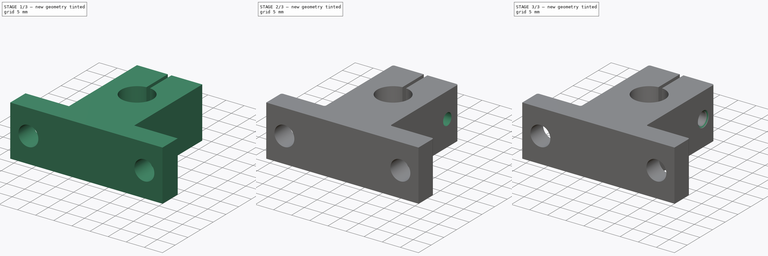
[diagram: build sequence overview — one tinted view per stage of 3, left to right]
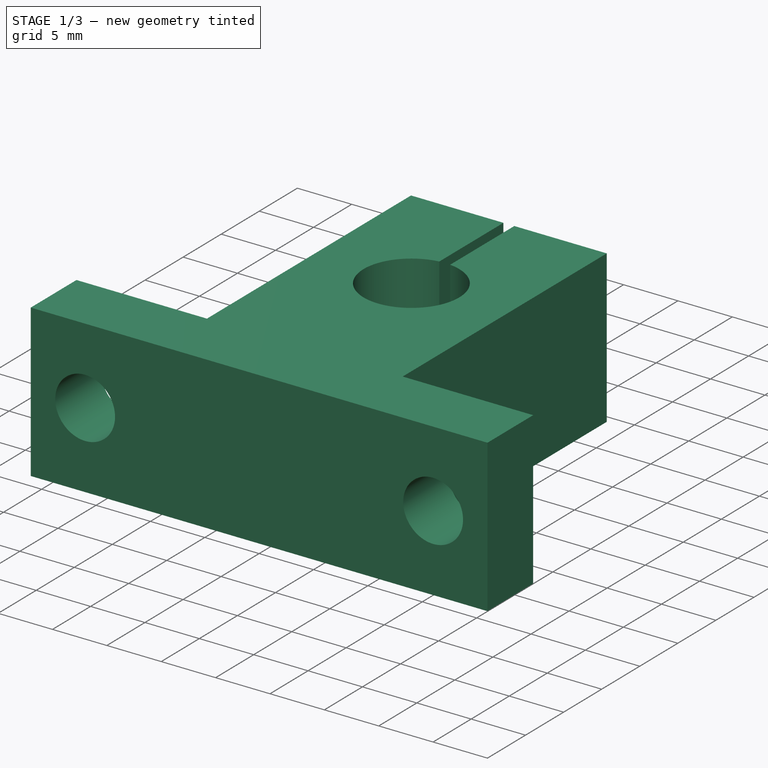
[diagram: stage 1 of 3 — iso view after this stage's code; geometry added in this stage tinted green]
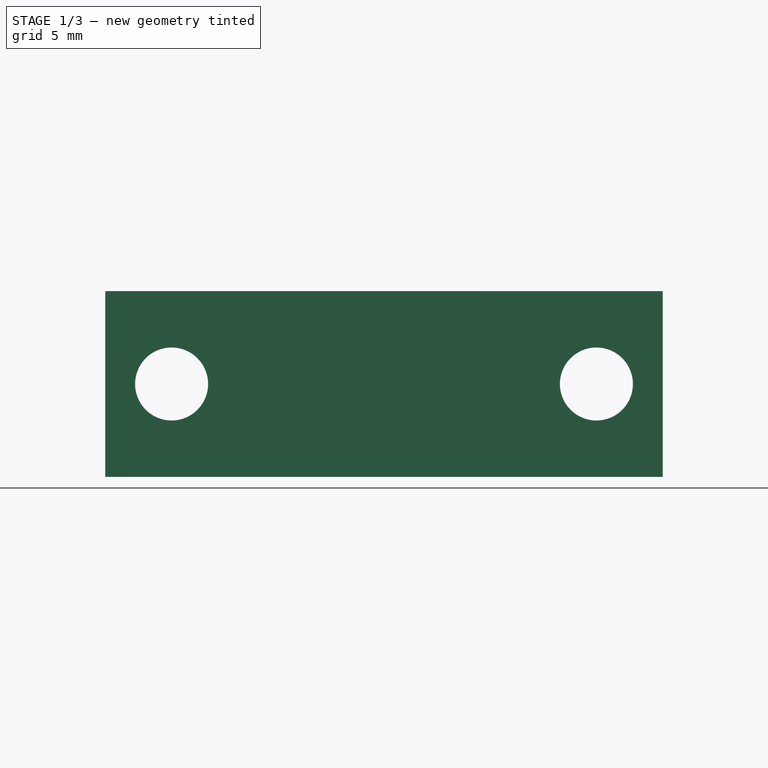
[diagram: stage 1 of 3 — front view after this stage's code; geometry added in this stage tinted green]
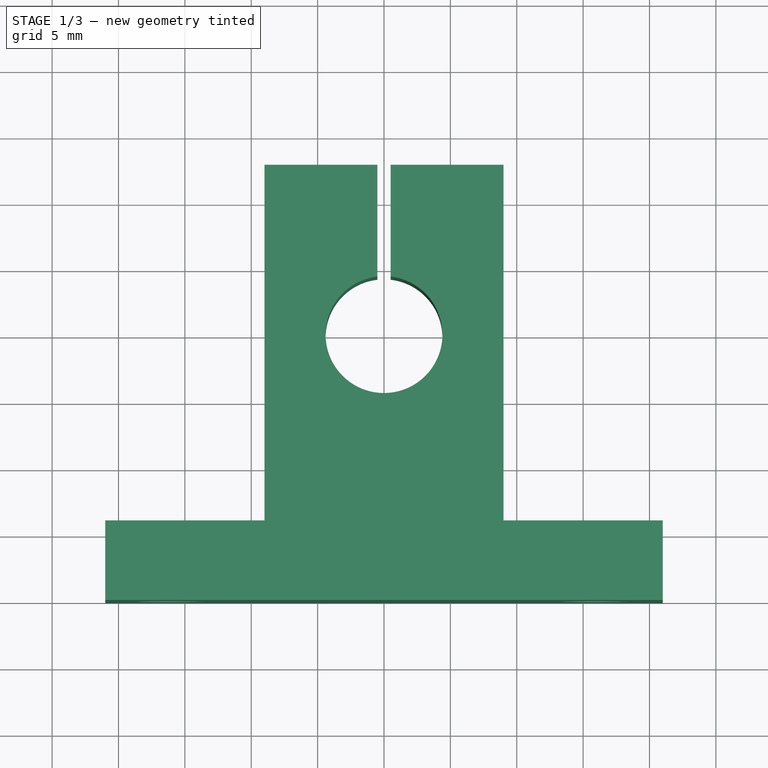
[diagram: stage 1 of 3 — top view after this stage's code; geometry added in this stage tinted green]
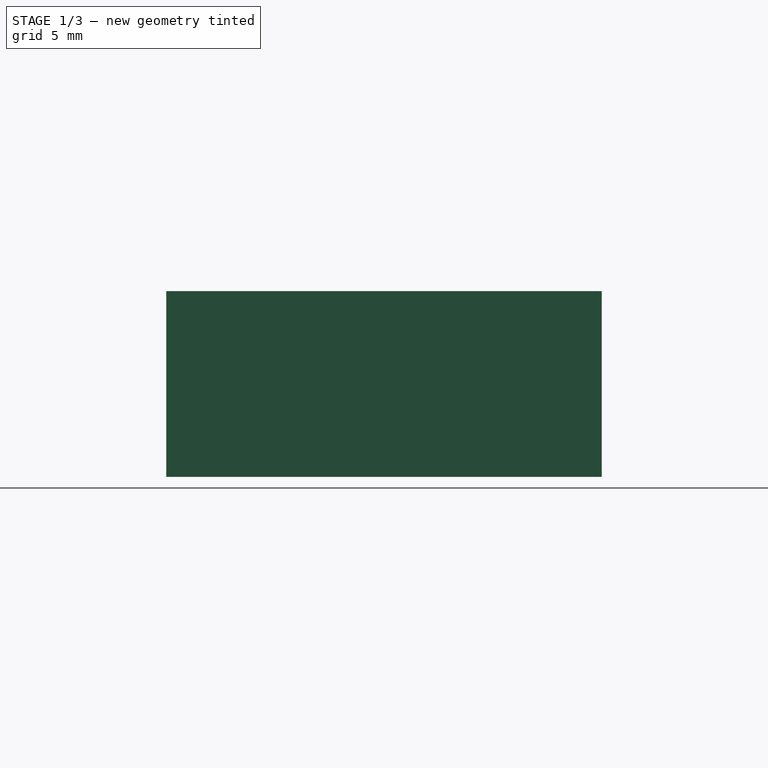
[diagram: stage 1 of 3 — right view after this stage's code; geometry added in this stage tinted green]
FCSTD DOCUMENT  (FreeCAD 0.17R11904 (Git))
Label: sk8_rod_holder_v2
License: All rights reserved
LicenseURL: http://en.wikipedia.org/wiki/All_rights_reserved
objects: Sketcher::SketchObject×4, PartDesign::Hole×3, PartDesign::Chamfer×2, PartDesign::Pad×1, PartDesign::Fillet×1, PartDesign::Body×1
note: 16 computed .brp shape members not serialized (recipe doc carries the construction recipe); baked Part::Feature solids carry a one-line shape summary decoded from their .brp

FEATURE [Sketcher::SketchObject] Sketch
  MapMode = 5
  Support = -> [XY_Plane]
  sketch-geometry (14):
    g0: LineSegment StartX=-21 StartY=0 StartZ=0 EndX=-21 EndY=6 EndZ=0
    g1: LineSegment StartX=-21 StartY=6 StartZ=0 EndX=-9 EndY=6 EndZ=0
    g2: LineSegment StartX=-9 StartY=6 StartZ=0 EndX=-9 EndY=32.8 EndZ=0
    g3: LineSegment [constr] StartX=-9 StartY=32.8 StartZ=0 EndX=9 EndY=32.8 EndZ=0
    g4: LineSegment StartX=9 StartY=32.8 StartZ=0 EndX=9 EndY=6 EndZ=0
    g5: LineSegment StartX=9 StartY=6 StartZ=0 EndX=21 EndY=6 EndZ=0
    g6: LineSegment StartX=21 StartY=6 StartZ=0 EndX=21 EndY=0 EndZ=0
    g7: LineSegment StartX=21 StartY=0 StartZ=0 EndX=-21 EndY=0 EndZ=0
    g8: Circle [constr] CenterX=0 CenterY=20 CenterZ=0 NormalX=0 NormalY=0 NormalZ=1 Radius=4.4
    g9: LineSegment StartX=-0.5 StartY=32.8 StartZ=0 EndX=-0.5 EndY=24.3715 EndZ=0
    g10: LineSegment StartX=0.5 StartY=32.8 StartZ=0 EndX=0.5 EndY=24.3715 EndZ=0
    g11: LineSegment StartX=-0.5 StartY=32.8 StartZ=0 EndX=-9 EndY=32.8 EndZ=0
    g12: LineSegment StartX=0.5 StartY=32.8 StartZ=0 EndX=9 EndY=32.8 EndZ=0
    g13: ArcOfCircle CenterX=0 CenterY=20 CenterZ=0 NormalX=0 NormalY=0 NormalZ=1 Radius=4.4 StartAngle=1.68468 EndAngle=7.7401
  constraints (43):
    c: PointOnObject(g0,g-1)
    c: Vertical(g0)
    c: Coincident(g0,g1)
    c: Horizontal(g1)
    c: Coincident(g1,g2)
    c: Vertical(g2)
    c: Coincident(g2,g3)
    c: Horizontal(g3)
    c: Coincident(g3,g4)
    c: Vertical(g4)
    c: Coincident(g4,g5)
    c: Horizontal(g5)
    c: Coincident(g5,g6)
    c: Vertical(g6)
    c: Coincident(g6,g7)
    c: Coincident(g7,g0)
    c: Horizontal(g7)
    c: Symmetric(g7,g7,g-1)
    c: Symmetric(g2,g3,g-2)
    c: Equal(g1,g5)
    c: Equal(g0,g6)
    c: Distance(g7) = 42  'W'
    c: Distance(g3) = 18  'P'
    c: DistanceY(g0,g2) = 32.8  'F'
    c: Distance(g0) = 6  'G'
    c: PointOnObject(g8,g-2)
    c: DistanceY(g-1,g8) = 20  'h'
    c: Radius(g8) = 4.4
    c: PointOnObject(g9,g3)
    c: PointOnObject(g9,g8)
    c: Vertical(g9)
    c: PointOnObject(g10,g3)
    c: PointOnObject(g10,g8)
    c: Vertical(g10)
    c: Coincident(g11,g9)
    c: Coincident(g11,g2)
    c: Coincident(g12,g10)
    c: Coincident(g12,g3)
    c: Coincident(g13,g8)
    c: Coincident(g13,g9)
    c: Coincident(g13,g10)
    c: Equal(g10,g9)
    c: DistanceX(g9,g10) = 1
FEATURE [PartDesign::Pad] Pad
  Length = 14
  Length2 = 100
  Midplane = true
  Profile = -> Sketch
  Type = 0
FEATURE [Sketcher::SketchObject] Sketch001
  MapMode = 5
  Placement = pos=(0,6,0) rot=(0,0.707107,0.707107;3.14159rad)
  Support = -> [Pad]
  sketch-geometry (2):
    g0: Circle CenterX=-16 CenterY=0 CenterZ=0 NormalX=0 NormalY=0 NormalZ=1 Radius=2.5
    g1: Circle CenterX=16 CenterY=0 CenterZ=0 NormalX=0 NormalY=0 NormalZ=1 Radius=2.5
  constraints (6):
    c: PointOnObject(g0,g-1)
    c: PointOnObject(g1,g-1)
    c: Symmetric(g0,g1,g-2)
    c: Distance(g0,g1) = 32  'B'
    c: Radius(g0) = 2.5
    c: Equal(g0,g1)
FEATURE [PartDesign::Hole] Hole
  BaseFeature = -> Pad
  Depth = 25
  DepthType = 1
  Diameter = 5.5
  DrillPoint = 0
  DrillPointAngle = 118
  HoleCutCountersinkAngle = 90
  HoleCutDepth = 0
  HoleCutDiameter = 5
  HoleCutType = 0
  ModelActualThread = false
  Profile = -> Sketch001
  Tapered = false
  TaperedAngle = 90
  ThreadAngle = 0
  ThreadClass = 0
  ThreadCutOffInner = 0
  ThreadCutOffOuter = 0
  ThreadDirection = 0
  ThreadFit = 0
  ThreadPitch = 0
  ThreadSize = 6
  ThreadType = 1
  Threaded = false
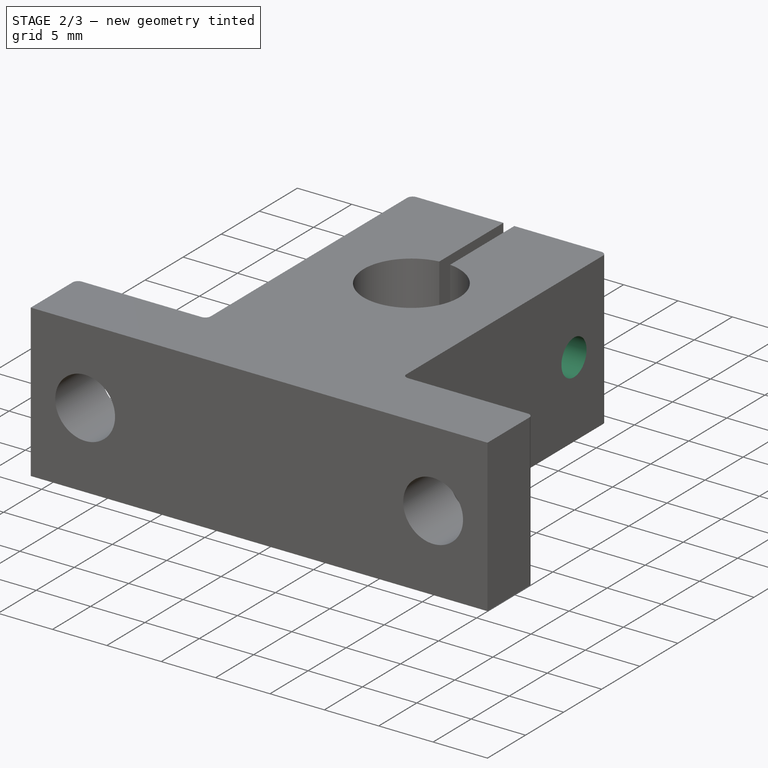
[diagram: stage 2 of 3 — iso view after this stage's code; geometry added in this stage tinted green]
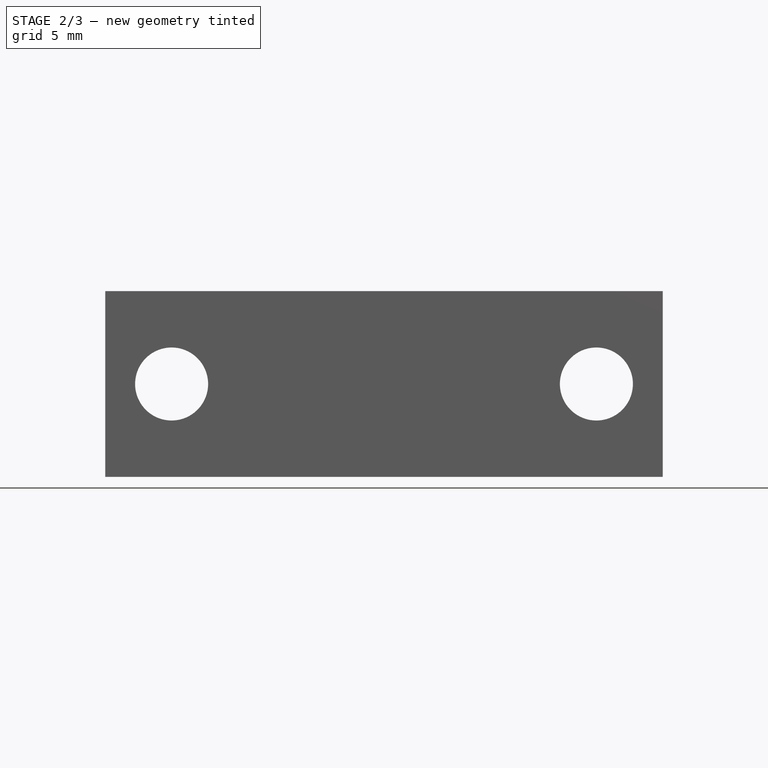
[diagram: stage 2 of 3 — front view after this stage's code; geometry added in this stage tinted green]
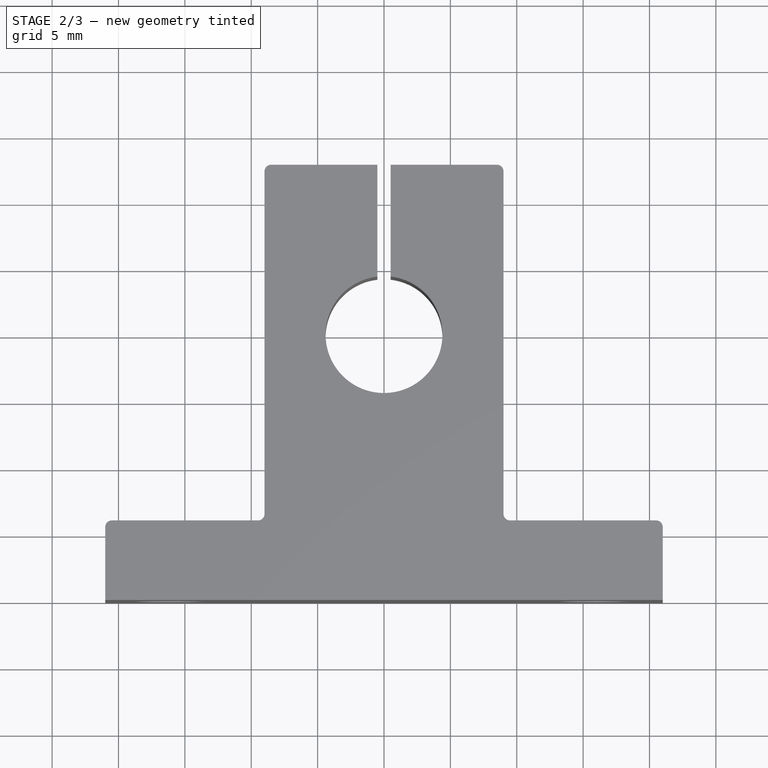
[diagram: stage 2 of 3 — top view after this stage's code; geometry added in this stage tinted green]
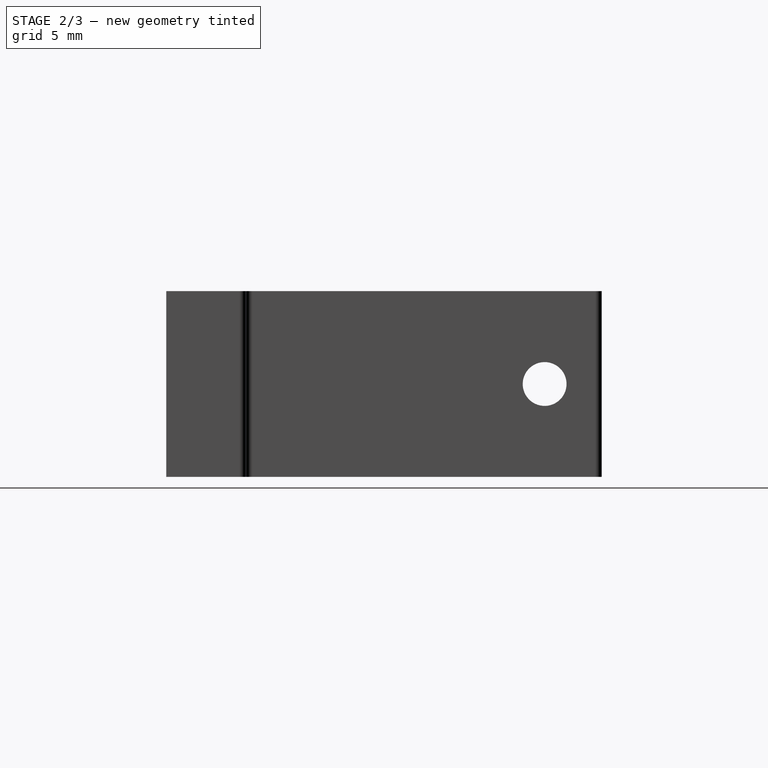
[diagram: stage 2 of 3 — right view after this stage's code; geometry added in this stage tinted green]
FEATURE [Sketcher::SketchObject] Sketch002
  MapMode = 5
  Placement = pos=(-9,0,0) rot=(0.57735,-0.57735,-0.57735;2.0944rad)
  Support = -> [Hole]
  sketch-geometry (1):
    g0: Circle CenterX=-28.5 CenterY=0 CenterZ=0 NormalX=0 NormalY=0 NormalZ=1 Radius=2
  constraints (3):
    c: PointOnObject(g0,g-1)
    c: Radius(g0) = 2
    c: Distance(g-1,g0) = 28.5
FEATURE [PartDesign::Hole] Hole001
  BaseFeature = -> Hole
  Depth = 9
  DepthType = 0
  Diameter = 4.4
  DrillPoint = 0
  DrillPointAngle = 118
  HoleCutCountersinkAngle = 90
  HoleCutDepth = 5
  HoleCutDiameter = 6
  HoleCutType = 5
  ModelActualThread = false
  Profile = -> Sketch002
  Tapered = false
  TaperedAngle = 90
  ThreadAngle = 60
  ThreadClass = 0
  ThreadCutOffInner = 0.0757772
  ThreadCutOffOuter = 0.151554
  ThreadDirection = 1
  ThreadFit = 0
  ThreadPitch = 0.7
  ThreadSize = 5
  ThreadType = 1
  Threaded = false
FEATURE [Sketcher::SketchObject] Sketch003
  ExternalGeometry = -> [Hole001]
  MapMode = 5
  Placement = pos=(9,0,0) rot=(0.57735,0.57735,0.57735;2.0944rad)
  Support = -> [Hole001]
  sketch-geometry (1):
    g0: Circle CenterX=28.5 CenterY=0 CenterZ=0 NormalX=0 NormalY=0 NormalZ=1 Radius=2
  constraints (2):
    c: Coincident(g0,g-3)
    c: Radius(g0) = 2
FEATURE [PartDesign::Hole] Hole002
  BaseFeature = -> Hole001
  Depth = 9
  DepthType = 0
  Diameter = 3.3
  DrillPoint = 0
  DrillPointAngle = 118
  HoleCutCountersinkAngle = 90
  HoleCutDepth = 0
  HoleCutDiameter = 4
  HoleCutType = 0
  ModelActualThread = false
  Profile = -> Sketch003
  Tapered = false
  TaperedAngle = 90
  ThreadAngle = 60
  ThreadClass = 0
  ThreadCutOffInner = 0.0757772
  ThreadCutOffOuter = 0.151554
  ThreadDirection = 1
  ThreadFit = 0
  ThreadPitch = 0.7
  ThreadSize = 5
  ThreadType = 1
  Threaded = true
FEATURE [PartDesign::Fillet] Fillet
  Base = -> Hole002 [Edge11,Edge2,Edge42,Edge40,Edge39,Edge33]
  BaseFeature = -> Hole002
  Radius = 0.5
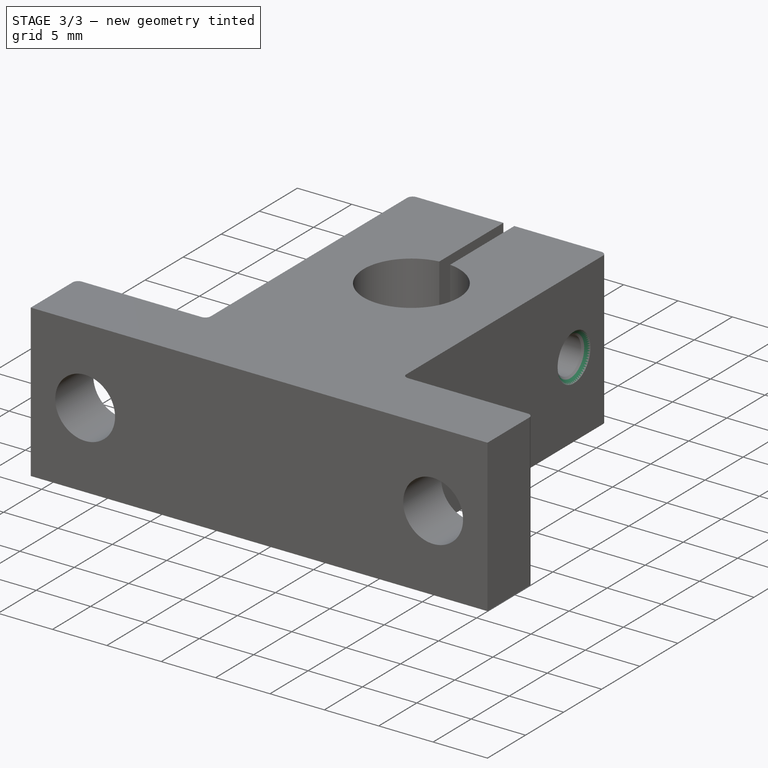
[diagram: stage 3 of 3 — iso view after this stage's code; geometry added in this stage tinted green]
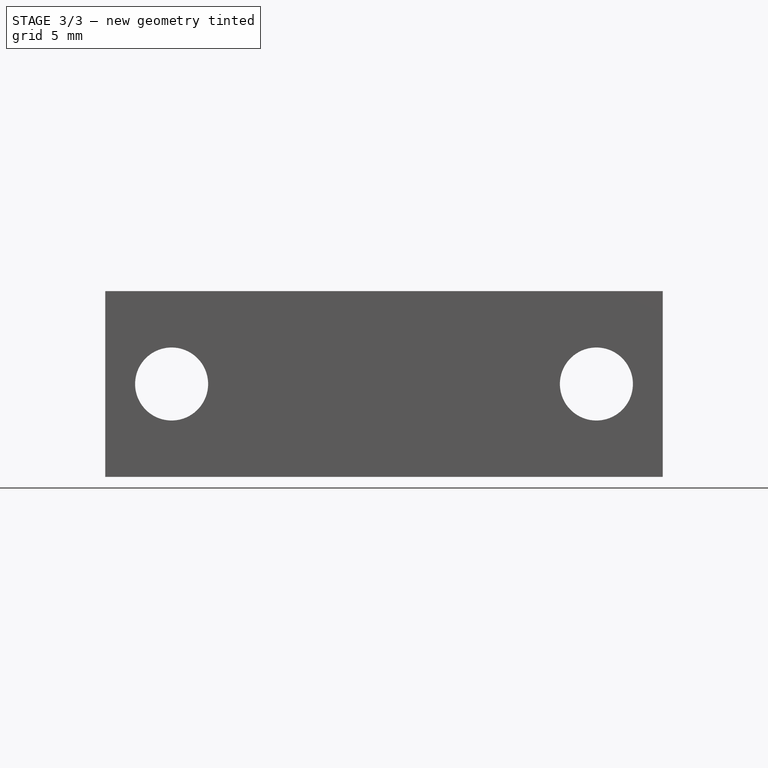
[diagram: stage 3 of 3 — front view after this stage's code; geometry added in this stage tinted green]
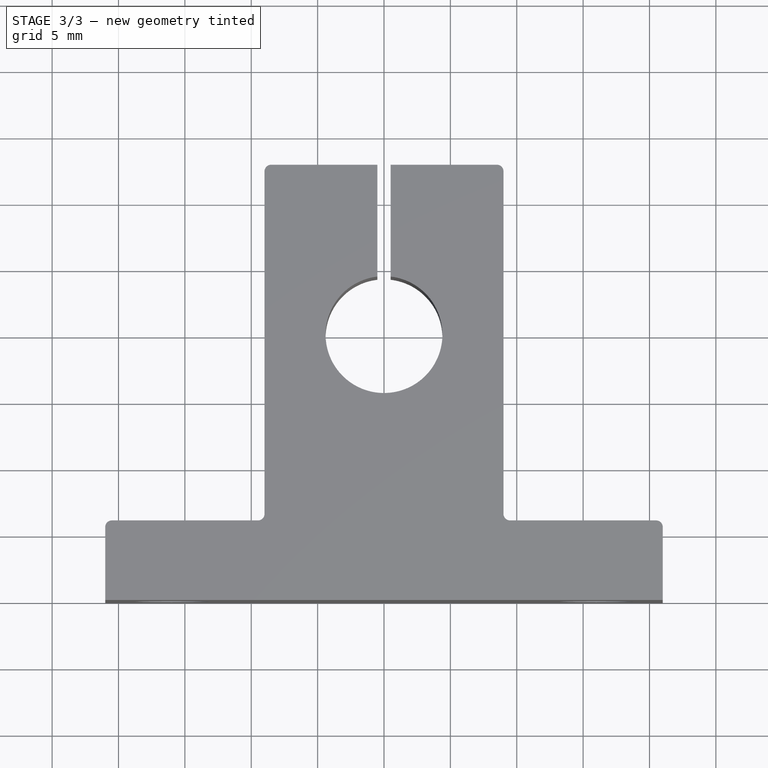
[diagram: stage 3 of 3 — top view after this stage's code; geometry added in this stage tinted green]
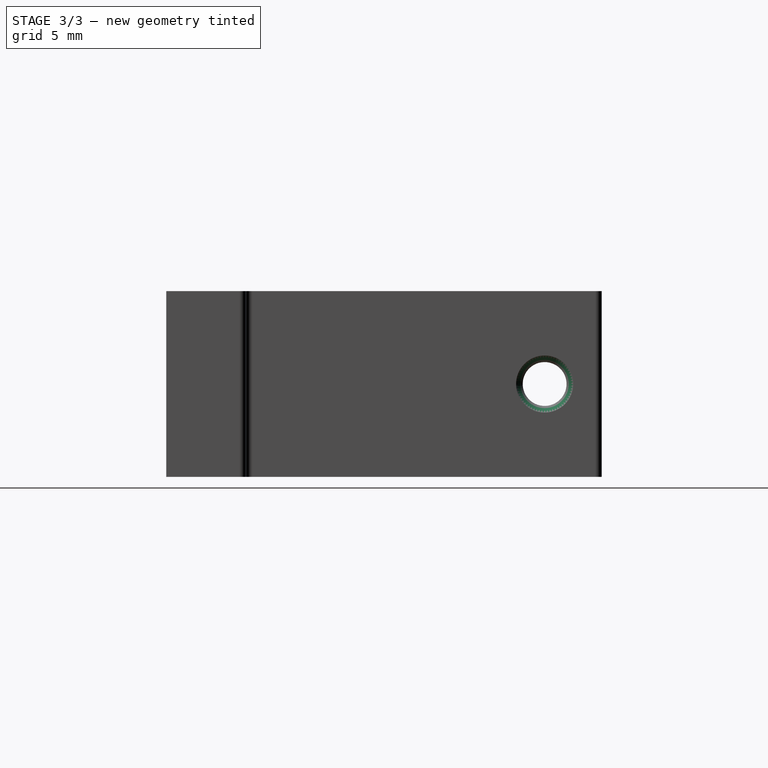
[diagram: stage 3 of 3 — right view after this stage's code; geometry added in this stage tinted green]
FEATURE [PartDesign::Chamfer] Chamfer
  Base = -> Fillet [Edge62,Edge49]
  BaseFeature = -> Fillet
  Size = 1
FEATURE [PartDesign::Chamfer] Chamfer001
  Base = -> Chamfer [Edge59,Edge51]
  BaseFeature = -> Chamfer
  Size = 0.5
FEATURE [PartDesign::Body] Body
  Group = -> [Sketch,Pad,Sketch001,Hole,Sketch002,Hole001,Sketch003,Hole002,Fillet,Chamfer,Chamfer001]
  Origin = -> Origin
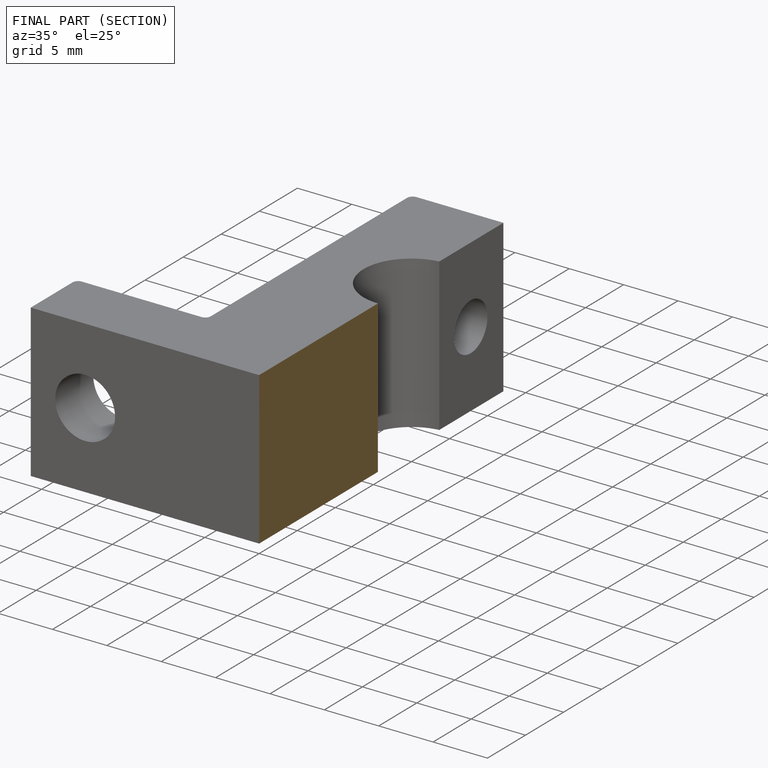
[diagram: finished part — half-section view (interior)]
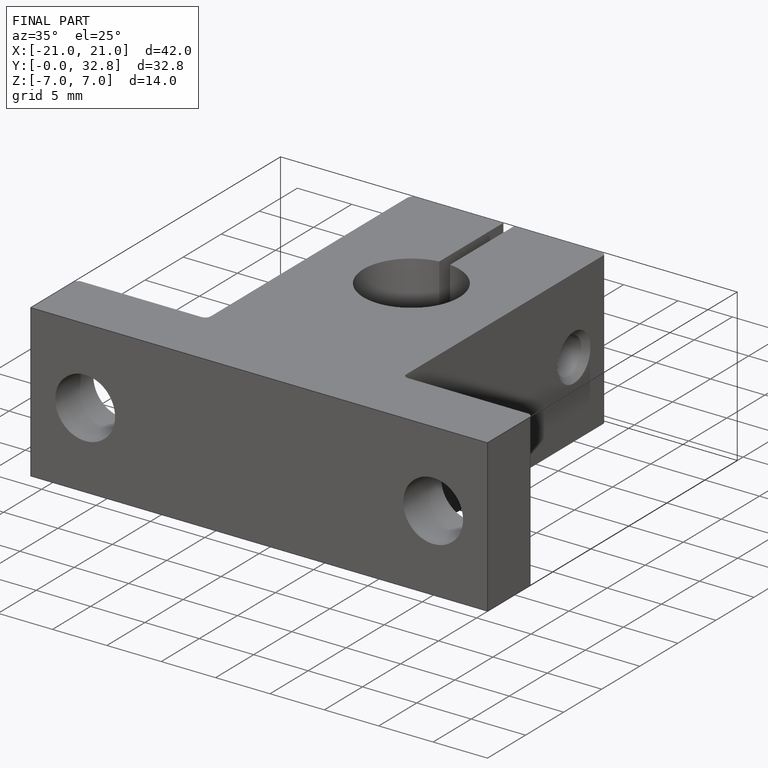
[diagram: finished part — iso view with bounding-box wireframe]
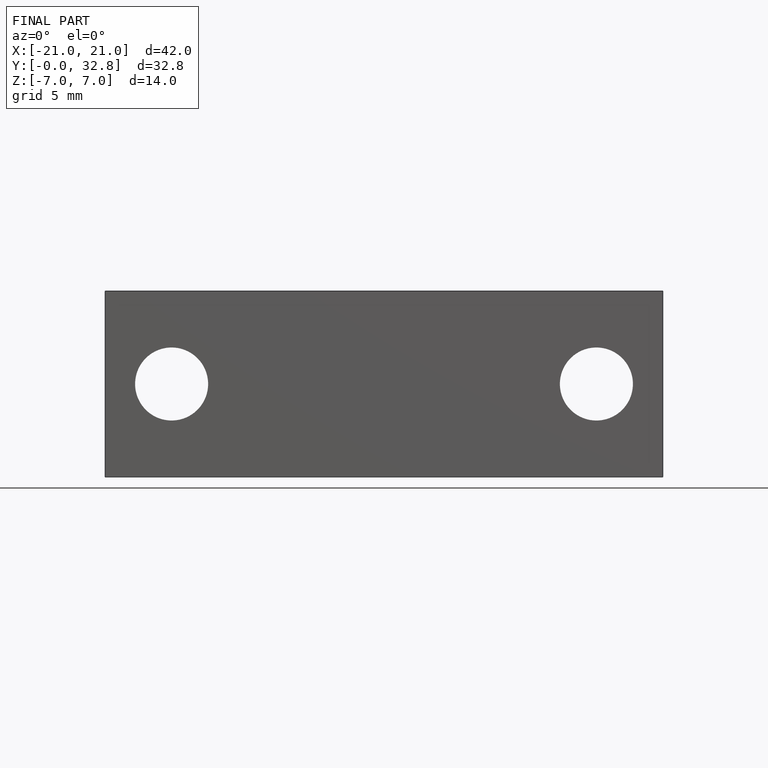
[diagram: finished part — front view with bounding-box wireframe]
